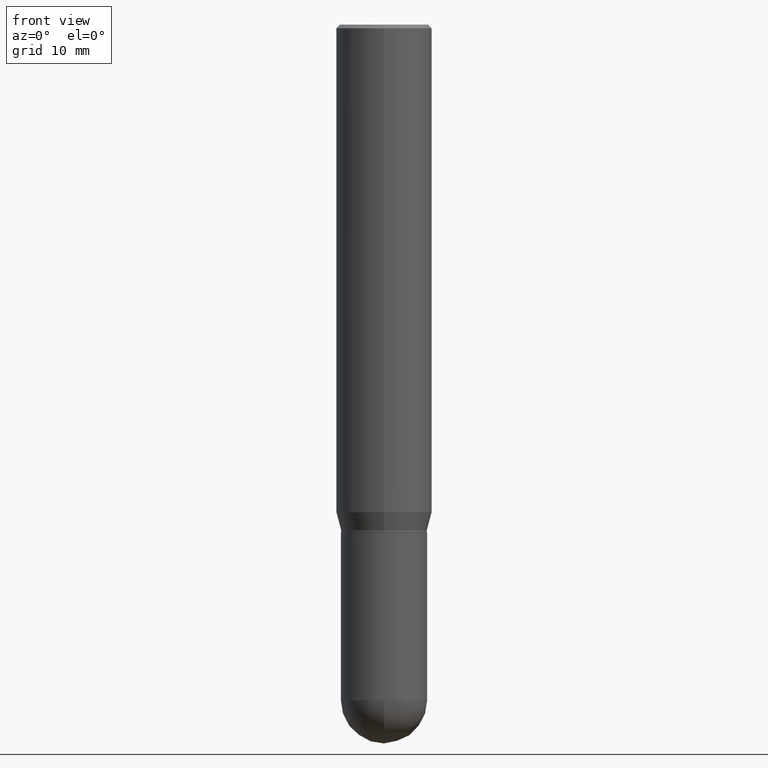
[diagram: clean part render]
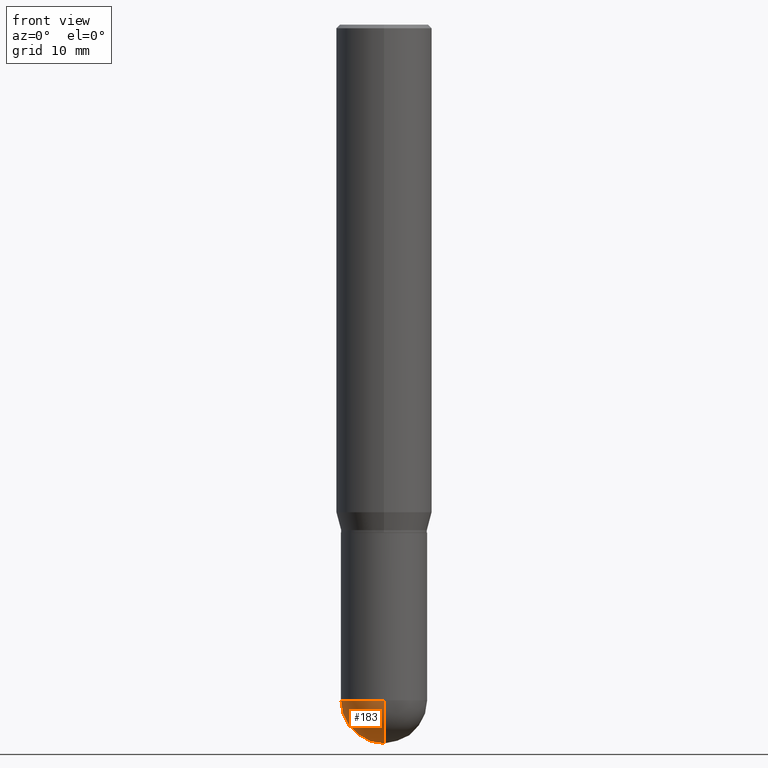
[diagram: same view with one face highlighted and labeled with its STEP entity id]
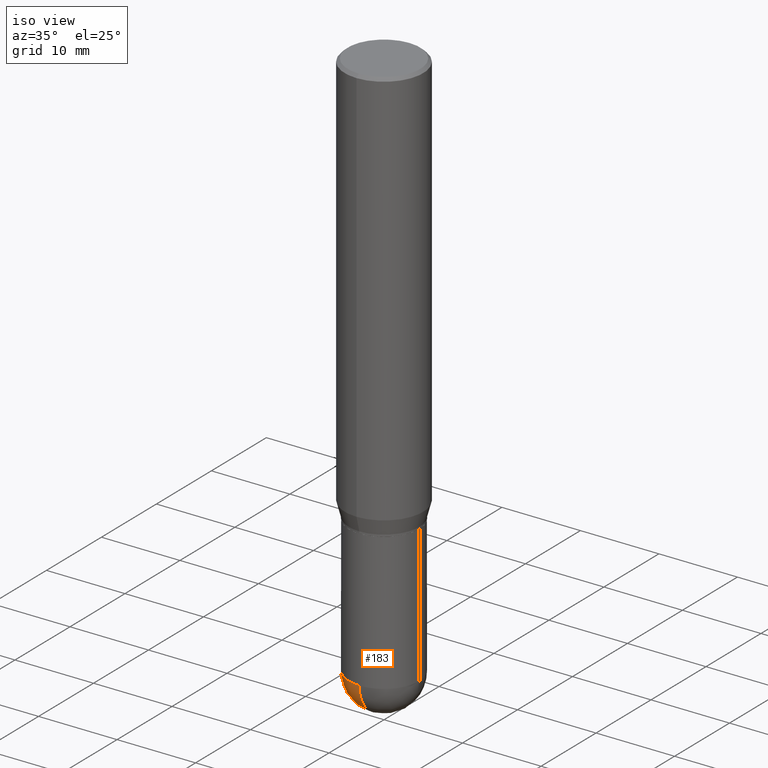
[diagram: same view with one face highlighted and labeled with its STEP entity id]
A machine part, front view. The second image highlights one B-rep face of the part: STEP entity #183.
A second angle (iso view) of the same face is appended — the face is thin or edge-on in the first view.
In plain terms, the highlighted spherical surface has radius 4.4996 mm.
Its self-contained STEP definition (entity closure, byte-faithful):
#2 = AXIS2_PLACEMENT_3D ( 'NONE', #31, #149, #281 ) ;
#15 = EDGE_CURVE ( 'NONE', #425, #71, #382, .T. ) ;
#31 = CARTESIAN_POINT ( 'NONE',  ( 6.787765491887772680E-29, -9.691130178159974964E-15, -2.775649999999999729 ) ) ;
#37 = DIRECTION ( 'NONE',  ( 6.982962677686264344E-15, 1.000000000000000000, 0.000000000000000000 ) ) ;
#55 = DIRECTION ( 'NONE',  ( -2.445468806185136597E-29, 3.491481338843145583E-15, 1.000000000000000000 ) ) ;
#67 = CARTESIAN_POINT ( 'NONE',  ( -1.258726456398949454E-15, -0.1771500000000097441, -2.775649999999999284 ) ) ;
#71 = VERTEX_POINT ( 'NONE', #473 ) ;
#83 = CARTESIAN_POINT ( 'NONE',  ( 6.813022828238686978E-29, -9.654960234947156736E-15, -2.775649999999999729 ) ) ;
#94 = CARTESIAN_POINT ( 'NONE',  ( 6.787765491887772680E-29, -9.691130178159974964E-15, -2.775649999999999729 ) ) ;
#119 = CIRCLE ( 'NONE', #374, 0.1771500000000000574 ) ;
#122 = FACE_OUTER_BOUND ( 'NONE', #415, .T. ) ;
#149 = DIRECTION ( 'NONE',  ( -2.445468806185136597E-29, 3.491481338843145583E-15, 1.000000000000000000 ) ) ;
#168 = CIRCLE ( 'NONE', #397, 0.1771500000000000574 ) ;
#171 = CARTESIAN_POINT ( 'NONE',  ( 7.253812262660790316E-29, -1.026262884509977305E-14, -2.952799999999999869 ) ) ;
#183 = ADVANCED_FACE ( 'NONE', ( #122 ), #284, .T. ) ;
#219 = DIRECTION ( 'NONE',  ( 1.000000000000000000, -6.982962677686270655E-15, 0.000000000000000000 ) ) ;
#227 = ORIENTED_EDGE ( 'NONE', *, *, #302, .T. ) ;
#231 = EDGE_CURVE ( 'NONE', #253, #425, #119, .T. ) ;
#248 = CARTESIAN_POINT ( 'NONE',  ( 6.813022828238686978E-29, -9.654960234947156736E-15, -2.775649999999999729 ) ) ;
#251 = DIRECTION ( 'NONE',  ( -1.000000000000000000, 6.982962677686265133E-15, -4.883557194083112340E-29 ) ) ;
#253 = VERTEX_POINT ( 'NONE', #171 ) ;
#263 = ORIENTED_EDGE ( 'NONE', *, *, #15, .F. ) ;
#281 = DIRECTION ( 'NONE',  ( 1.000000000000000000, -6.982962677686270655E-15, 0.000000000000000000 ) ) ;
#284 = SPHERICAL_SURFACE ( 'NONE', #505, 0.1771500000000000574 ) ;
#298 = VERTEX_POINT ( 'NONE', #67 ) ;
#301 = EDGE_CURVE ( 'NONE', #71, #298, #442, .T. ) ;
#302 = EDGE_CURVE ( 'NONE', #253, #298, #168, .T. ) ;
#304 = ORIENTED_EDGE ( 'NONE', *, *, #301, .F. ) ;
#306 = ORIENTED_EDGE ( 'NONE', *, *, #231, .F. ) ;
#310 = CARTESIAN_POINT ( 'NONE',  ( 6.813022828238686978E-29, -9.654960234947156736E-15, -2.775649999999999729 ) ) ;
#314 = DIRECTION ( 'NONE',  ( -7.105427357600999492E-15, -1.000000000000000000, 0.000000000000000000 ) ) ;
#316 = DIRECTION ( 'NONE',  ( -1.000000000000000000, 7.105427357601001070E-15, -4.926315508542082329E-29 ) ) ;
#322 = DIRECTION ( 'NONE',  ( 1.000000000000000000, -6.982962677686265922E-15, 4.883557194083112340E-29 ) ) ;
#326 = CARTESIAN_POINT ( 'NONE',  ( 1.237031838352190236E-15, 0.1771499999999903430, -2.775650000000000173 ) ) ;
#374 = AXIS2_PLACEMENT_3D ( 'NONE', #248, #322, #37 ) ;
#382 = CIRCLE ( 'NONE', #450, 0.1771500000000000574 ) ;
#397 = AXIS2_PLACEMENT_3D ( 'NONE', #310, #316, #314 ) ;
#403 = DIRECTION ( 'NONE',  ( 6.982962677686265133E-15, 1.000000000000000000, -3.084220145260245435E-15 ) ) ;
#415 = EDGE_LOOP ( 'NONE', ( #306, #227, #304, #263 ) ) ;
#425 = VERTEX_POINT ( 'NONE', #326 ) ;
#442 = CIRCLE ( 'NONE', #2, 0.1771500000000000574 ) ;
#450 = AXIS2_PLACEMENT_3D ( 'NONE', #94, #55, #219 ) ;
#473 = CARTESIAN_POINT ( 'NONE',  ( -0.1771500000000000574, -7.229675687562965256E-15, -2.775649999999999729 ) ) ;
#505 = AXIS2_PLACEMENT_3D ( 'NONE', #83, #251, #403 ) ;